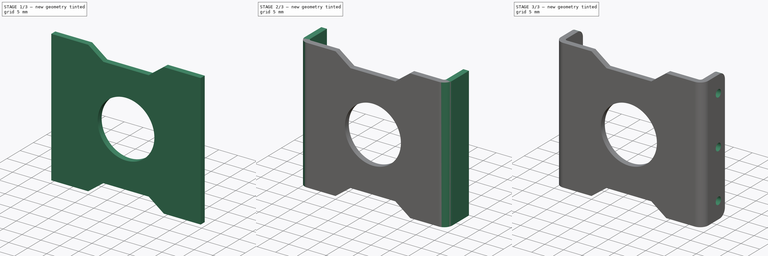
[diagram: build sequence overview — one tinted view per stage of 3, left to right]
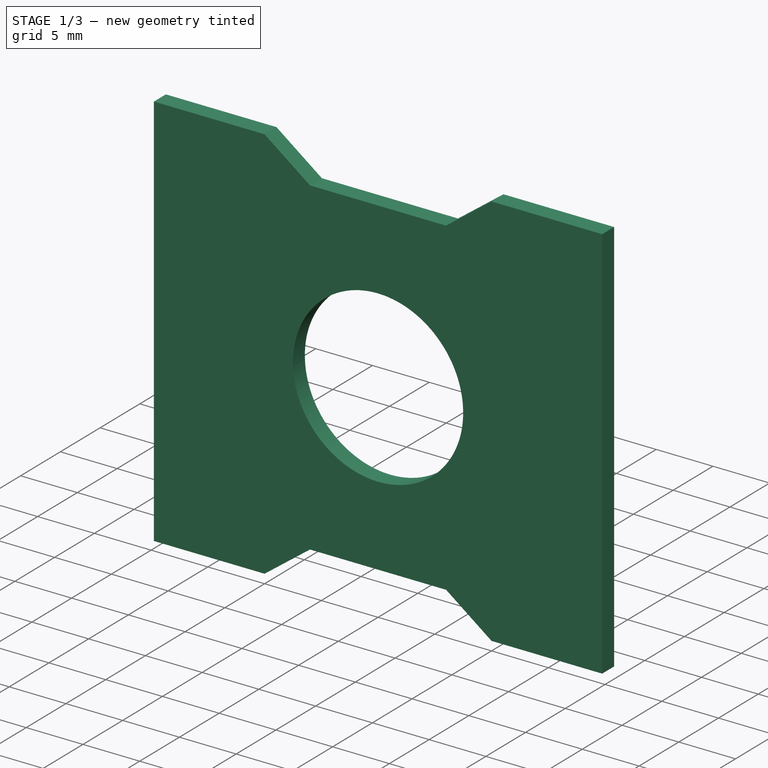
[diagram: stage 1 of 3 — iso view after this stage's code; geometry added in this stage tinted green]
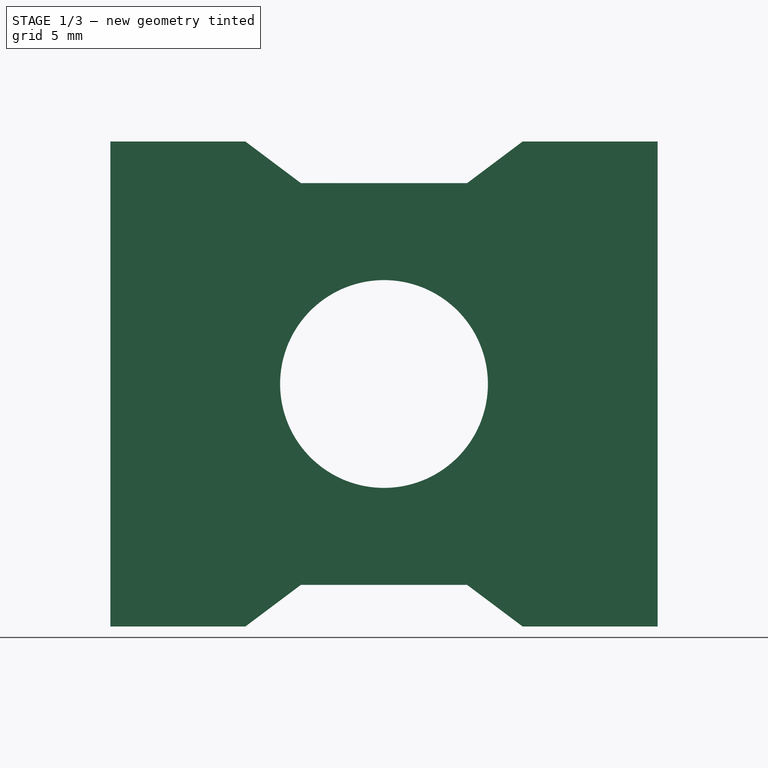
[diagram: stage 1 of 3 — front view after this stage's code; geometry added in this stage tinted green]
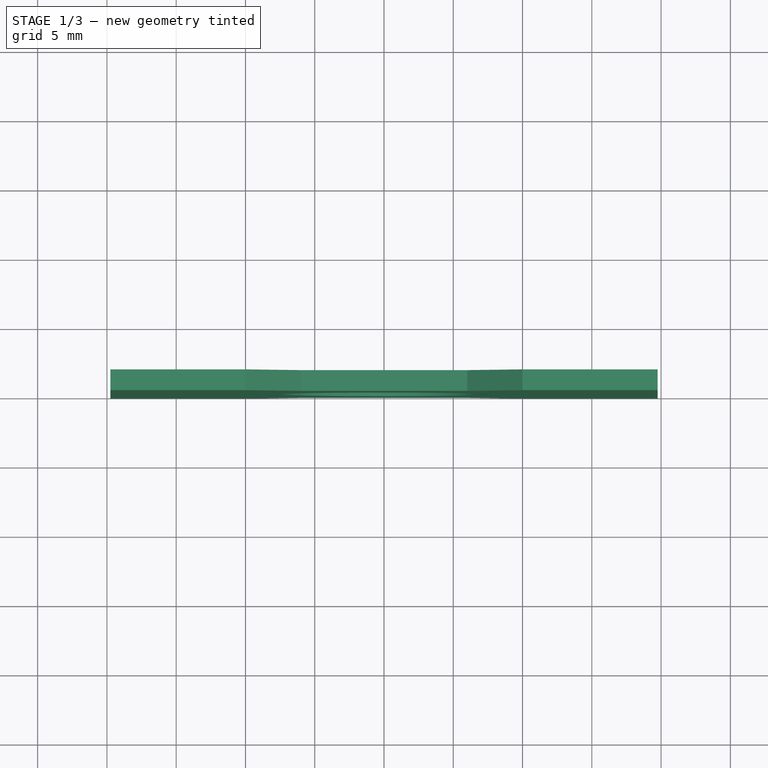
[diagram: stage 1 of 3 — top view after this stage's code; geometry added in this stage tinted green]
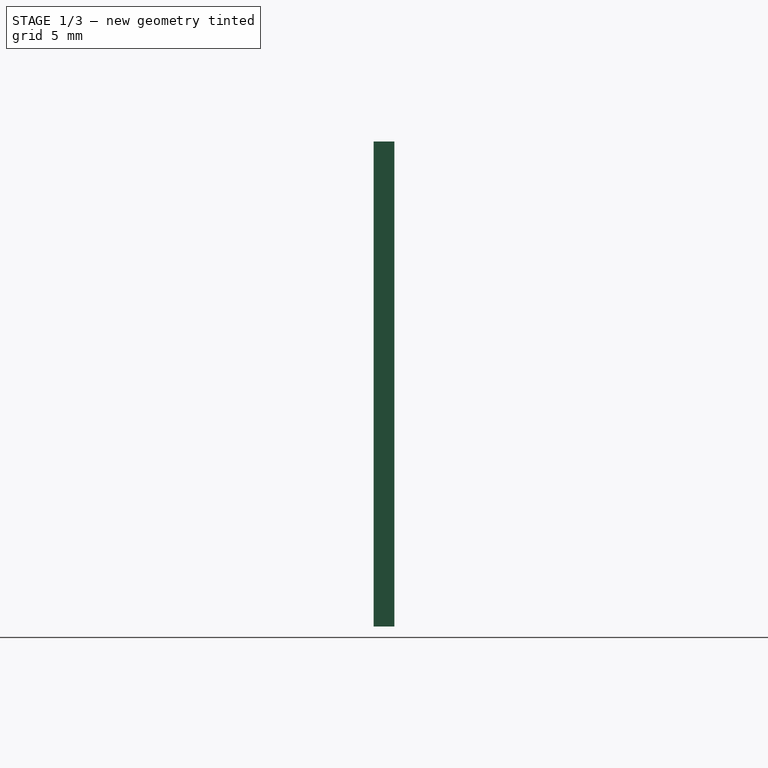
[diagram: stage 1 of 3 — right view after this stage's code; geometry added in this stage tinted green]
FCSTD DOCUMENT  (FreeCAD 0.21R33668 +26 (Git))
Label: MJ_leg_front
Comment: # 2023-12-26 22:17:25: read from None
License: All rights reserved
LicenseURL: https://en.wikipedia.org/wiki/All_rights_reserved
objects: Sketcher::SketchObject×3, PartDesign::Pocket×2, PartDesign::FeaturePython×2, Spreadsheet::Sheet×1, PartDesign::Pad×1, PartDesign::Fillet×1, PartDesign::Body×1
note: 14 computed .brp shape members not serialized (recipe doc carries the construction recipe); baked Part::Feature solids carry a one-line shape summary decoded from their .brp

FEATURE [Spreadsheet::Sheet] Parameters
  cells = A1='Parameter; B1='Value; C1='Fromula; D1='Tolerance; E1='Comment; A2='BendRadius; B2(BendRadius)=1.5; C2='1.5mm; A3='Thickness; B3(Thickness)=1.5; C3='1.5mm; A4='BendReliefDepth; B4(BendReliefDepth)=0.75; C4='0.75mm; A5='BendReliefWidth; B5(BendReliefWidth)=1.5; C5='1.5mm; A6='CornerReliefSize; B6(CornerReliefSize)=6; C6='6mm; A7='GapSize; B7(GapSize)=1.5; C7='1.5mm; A8='JacobiRadiusSize; B8(JacobiRadiusSize)=1.5; C8='1.5mm; A9='Kファクター; B9(K_____)=0.44; C9='0.44; A10='MinimumRemnant; B10(MinimumRemnant)=3; C10='3mm; A11='SeamGap; B11(SeamGap)=0.01; C11='0.01mm; A12='TransitionRadius; B12(TransitionRadius)=1.5; C12='1.5mm; A13='d0; B13(d0_)=39.5; C13='39.5mm; A14='d1; B14(d1_)=35; C14='35mm; A15='d10; B15(d10_)=0.75; C15='0.75mm; A16='d11; B16(d11_)=3; C16='3mm; A17='d12; B17(d12_)=1.5; C17='1.5mm; A18='d13; B18(d13_)=8.5; C18='8.5mm; A19='d14; B19(d14_)=90; C19='90°; A20='d15; B20(d15_)=0.68; C20='0.68mm; A21='d16; B21(d16_)=6; C21='6mm; A22='d17; B22(d17_)=1.5; C22='1.5mm; A23='d18; B23(d18_)=1.5; C23='1.5mm; A24='d19; B24(d19_)=2; C24='2mm; A25='d2; B25(d2_)=1.5; C25='1.5mm; A26='d20; B26(d20_)=2; C26='2mm; A27='d21; B27(d21_)=2; C27='2mm; A28='d22; B28(d22_)=13; C28='13mm; A29='d23; B29(d23_)=13; C29='13mm; A30='d24; B30(d24_)=2.5; C30='2.5mm; A31='d25; B31(d25_)=10; C31='10mm; A32='d26; B32(d26_)=0; C32='0°; A33='d27; B33(d27_)=2; C33='2mm; A34='d3; B34(d3_)=15; C34='15mm; A35='d4; B35(d4_)=3; C35='3mm; A36='d5; B36(d5_)=20; C36='20mm; A37='d6; B37(d6_)=12; C37='12mm; A38='d7; B38(d7_)=1.5; C38='1.5mm; A39='d8; B39(d8_)=0; C39='0°; A40='d9; B40(d9_)=1.5; C40='1.5mm
FEATURE [Sketcher::SketchObject] ____________1  label="スケッチ1"
  FullyConstrained = true
  Placement = pos=(0,0,0) rot=(0,0.707107,0.707107;3.14159rad)
  sketch-geometry (6):
    g0: LineSegment StartX=19.75 StartY=17.5 StartZ=0 EndX=-19.75 EndY=17.5 EndZ=0
    g1: LineSegment StartX=-19.75 StartY=17.5 StartZ=0 EndX=-19.75 EndY=-17.5 EndZ=0
    g2: LineSegment StartX=-19.75 StartY=-17.5 StartZ=0 EndX=19.75 EndY=-17.5 EndZ=0
    g3: LineSegment StartX=19.75 StartY=-17.5 StartZ=0 EndX=19.75 EndY=17.5 EndZ=0
    g4: LineSegment StartX=19.75 StartY=17.5 StartZ=0 EndX=-19.75 EndY=-17.5 EndZ=0
    g5: LineSegment StartX=-19.75 StartY=17.5 StartZ=0 EndX=19.75 EndY=-17.5 EndZ=0
  constraints (16):
    c: Perpendicular(g0,g1)
    c: Parallel(g0,g2)
    c: Parallel(g1,g3)
    c: Horizontal(g0)
    c: PointOnObject(g-1,g5)
    c: PointOnObject(g-1,g4)
    c: Coincident(g0,g3)
    c: Coincident(g0,g4)
    c: Coincident(g1,g2)
    c: Coincident(g1,g4)
    c: Coincident(g0,g1)
    c: Coincident(g0,g5)
    c: Coincident(g2,g3)
    c: Coincident(g2,g5)
    c: DistanceX(g0,g0) = 39.5
    c: DistanceY(g1,g1) = 35
FEATURE [PartDesign::Pad] Pad
  Direction = (0,1,-2e-16)
  Length = 1.5
  Length2 = 10
  Placement = pos=(0,0,0) rot=(0,0.707107,0.707107;3.14159rad)
  Profile = -> ____________1
  ReferenceAxis = -> ____________1 [N_Axis]
  Type = 0
FEATURE [Sketcher::SketchObject] ____________2  label="スケッチ2"
  ExternalGeometry = -> [Pad]
  FullyConstrained = true
  Placement = pos=(0,1.5,0) rot=(-1,0,0;1.5708rad)
  sketch-geometry (9):
    g0: Circle CenterX=0 CenterY=0 CenterZ=0 NormalX=0 NormalY=0 NormalZ=1 AngleXU=0 Radius=7.5
    g1: LineSegment StartX=-10 StartY=-17.5 StartZ=0 EndX=-6 EndY=-14.5 EndZ=0
    g2: LineSegment StartX=-6 StartY=-14.5 StartZ=0 EndX=6 EndY=-14.5 EndZ=0
    g3: LineSegment StartX=6 StartY=-14.5 StartZ=0 EndX=10 EndY=-17.5 EndZ=0
    g4: LineSegment StartX=10 StartY=-17.5 StartZ=0 EndX=-10 EndY=-17.5 EndZ=0
    g5: LineSegment StartX=10 StartY=17.5 StartZ=0 EndX=-10 EndY=17.5 EndZ=0
    g6: LineSegment StartX=-10 StartY=17.5 StartZ=0 EndX=-6 EndY=14.5 EndZ=0
    g7: LineSegment StartX=-6 StartY=14.5 StartZ=0 EndX=6 EndY=14.5 EndZ=0
    g8: LineSegment StartX=6 StartY=14.5 StartZ=0 EndX=10 EndY=17.5 EndZ=0
  constraints (22):
    c: Diameter(g0) = 15  'd3'
    c: Coincident(g1,g4)
    c: Coincident(g3,g4)
    c: Coincident(g0,g-1)
    c: Symmetric(g6,g7,g-2)
    c: Symmetric(g1,g2,g-2)
    c: DistanceX(g5,g5) = 20
    c: DistanceY(g6,g6) = 3
    c: DistanceX(g7,g7) = 12
    c: Equal(g7,g2)
    c: Equal(g4,g5)
    c: DistanceY(g1,g1) = 3
    c: Coincident(g5,g6)
    c: Coincident(g6,g7)
    c: Coincident(g5,g8)
    c: Coincident(g7,g8)
    c: Coincident(g1,g2)
    c: Coincident(g2,g3)
    c: Tangent(g5,g-3)
    c: Symmetric(g5,g5,g-2)
    c: Tangent(g4,g-5)
    c: Symmetric(g1,g3,g-2)
FEATURE [PartDesign::Pocket] Pocket
  BaseFeature = -> Pad
  Direction = (0,-1,-2e-16)
  Length = 5
  Length2 = 5
  Placement = pos=(0,0,0) rot=(0,0.707107,0.707107;3.14159rad)
  Profile = -> ____________2
  ReferenceAxis = -> ____________2 [N_Axis]
  Type = 1
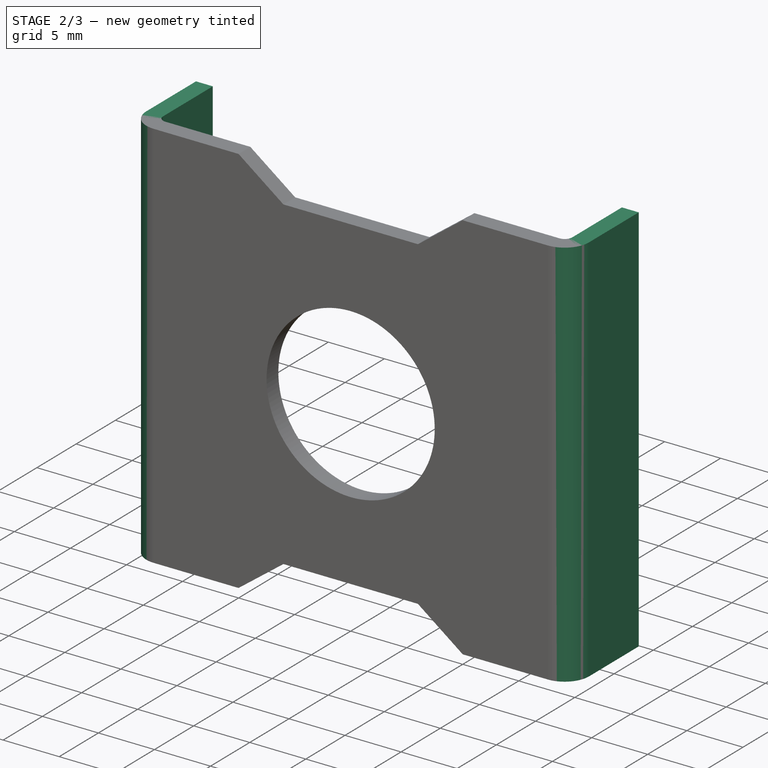
[diagram: stage 2 of 3 — iso view after this stage's code; geometry added in this stage tinted green]
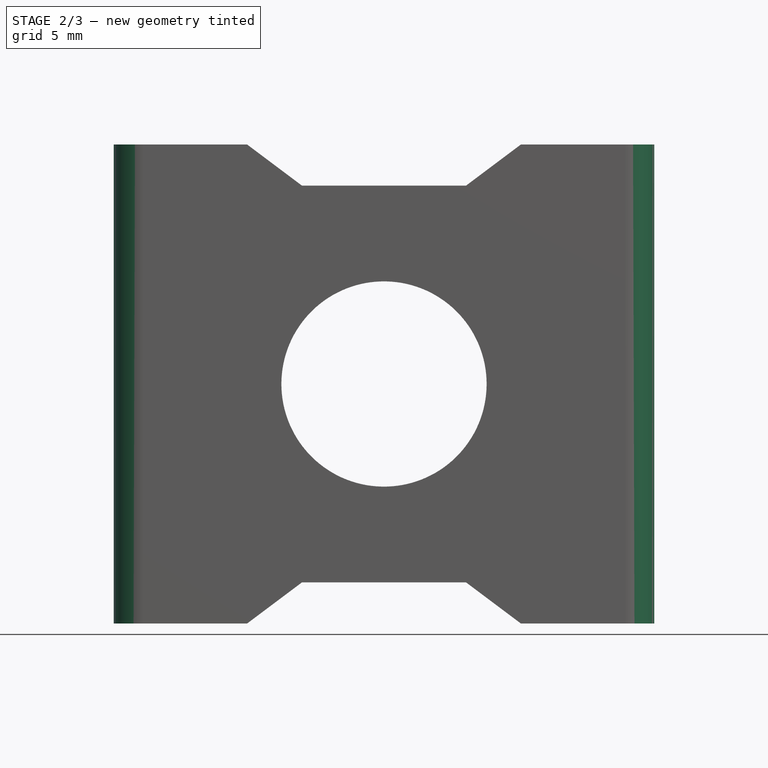
[diagram: stage 2 of 3 — front view after this stage's code; geometry added in this stage tinted green]
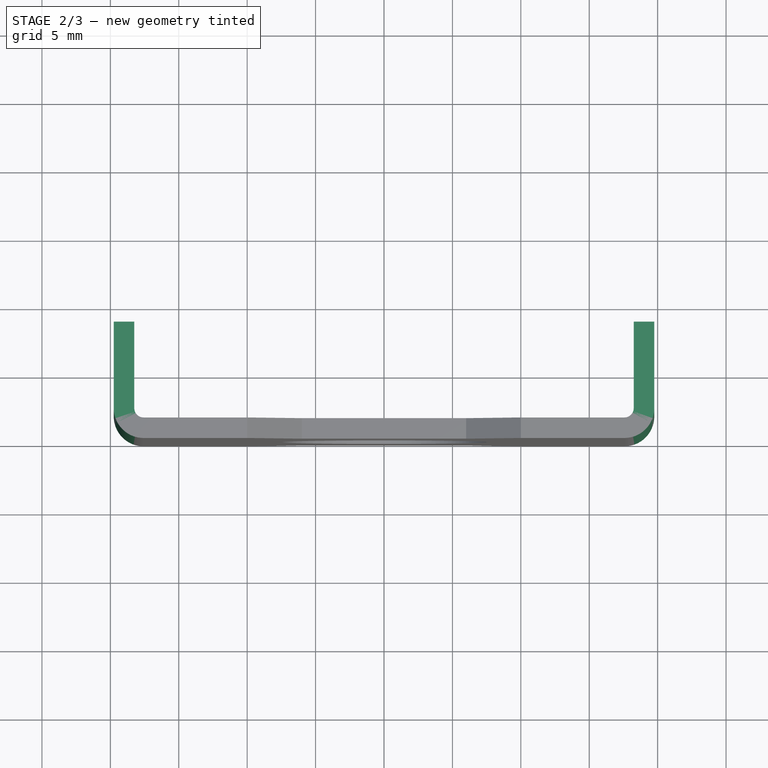
[diagram: stage 2 of 3 — top view after this stage's code; geometry added in this stage tinted green]
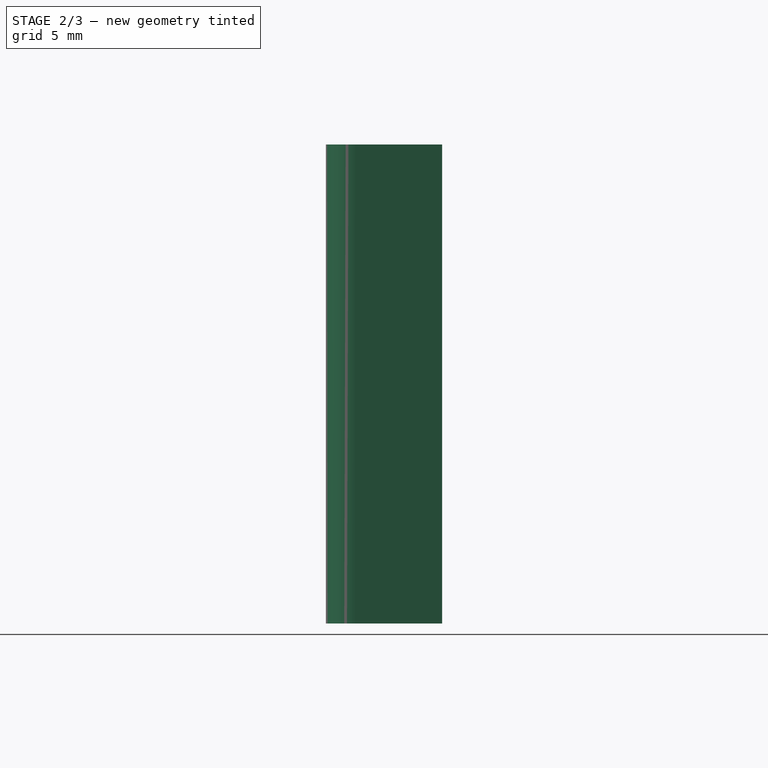
[diagram: stage 2 of 3 — right view after this stage's code; geometry added in this stage tinted green]
FEATURE [PartDesign::FeaturePython] Bend  # WARN: FeaturePython — macro-defined, semantics opaque (R4)
  AutoMiter = true
  BaseFeature = -> Pocket
  BendType = 1
  LengthList = [8.5]
  LengthSpec = 1
  ReliefFactor = 0.7
  UseReliefFactor = false
  angle = 90
  baseObject = -> Pocket [Face11]
  bendAList = [90]
  extend1 = 0
  extend2 = 0
  gap1 = 0
  gap2 = 0
  invert = false
  kfactor = 0.5
  length = 8.5
  maxExtendDist = 5
  minGap = 0.2
  minReliefGap = 1
  miterangle1 = 0
  miterangle2 = 0
  offset = 0
  radius = 0.68
  reliefType = 0
  reliefd = 1
  reliefw = 0.8
  sketchflip = false
  sketchinvert = false
  unfold = false
FEATURE [PartDesign::FeaturePython] Bend001  # WARN: FeaturePython — macro-defined, semantics opaque (R4)
  AutoMiter = true
  BaseFeature = -> Bend
  BendType = 1
  LengthList = [8.5]
  LengthSpec = 1
  ReliefFactor = 0.7
  UseReliefFactor = false
  angle = 90
  baseObject = -> Bend [Face22]
  bendAList = [90]
  extend1 = 0
  extend2 = 0
  gap1 = 0
  gap2 = 0
  invert = false
  kfactor = 0.5
  length = 8.5
  maxExtendDist = 5
  minGap = 0.2
  minReliefGap = 1
  miterangle1 = 0
  miterangle2 = 0
  offset = 0
  radius = 0.68
  reliefType = 0
  reliefd = 1
  reliefw = 0.8
  sketchflip = false
  sketchinvert = false
  unfold = false
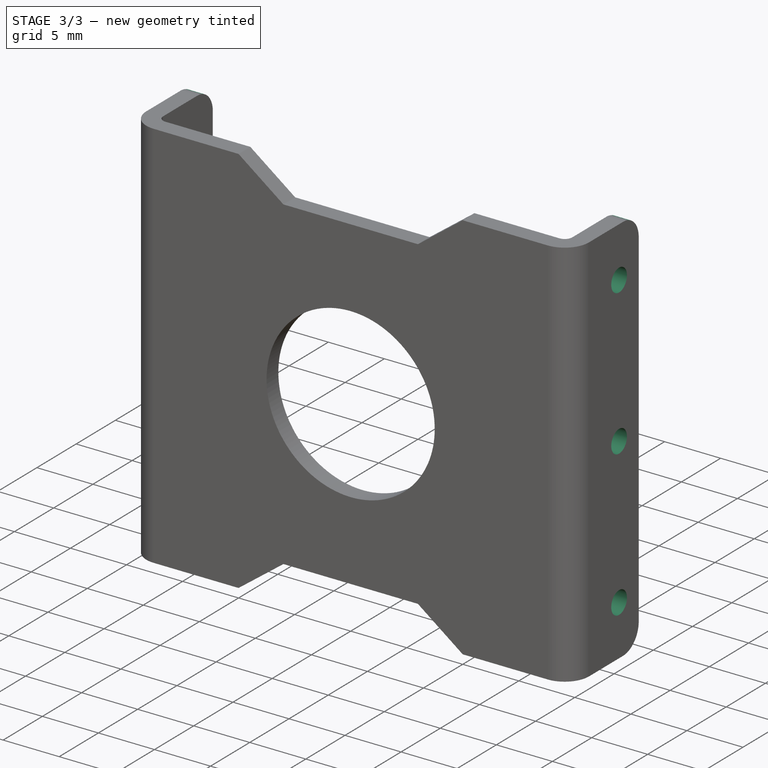
[diagram: stage 3 of 3 — iso view after this stage's code; geometry added in this stage tinted green]
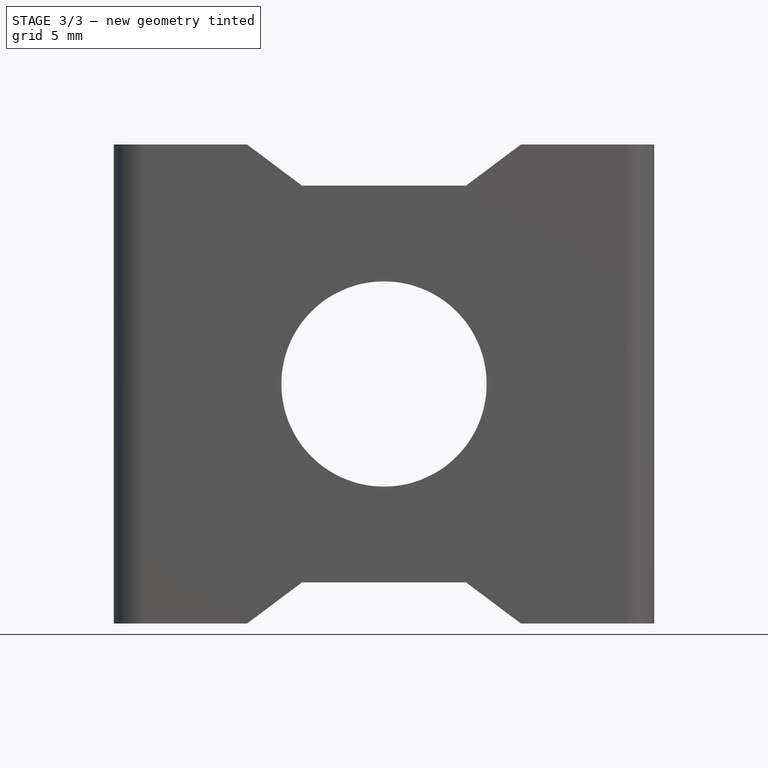
[diagram: stage 3 of 3 — front view after this stage's code; geometry added in this stage tinted green]
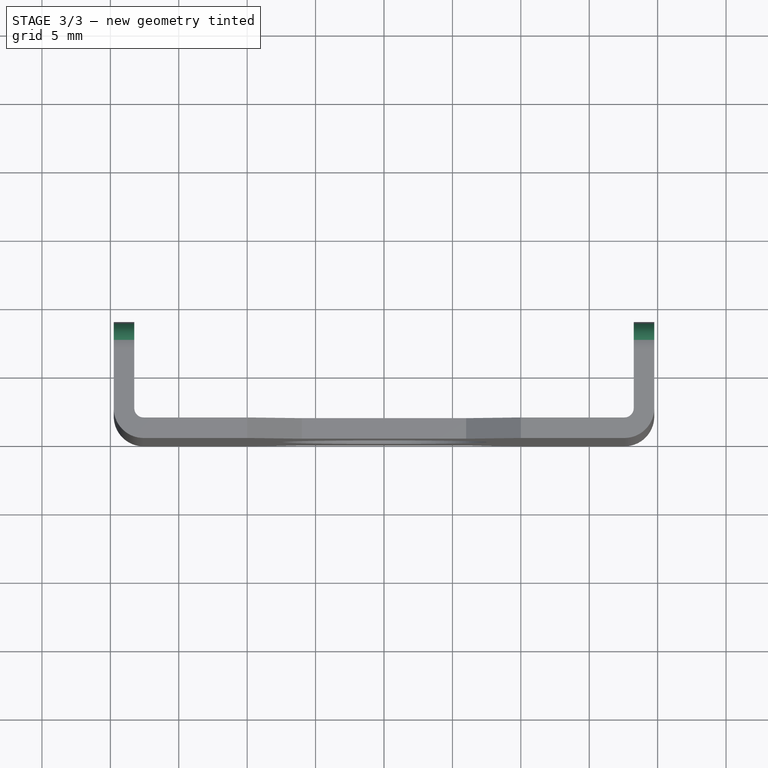
[diagram: stage 3 of 3 — top view after this stage's code; geometry added in this stage tinted green]
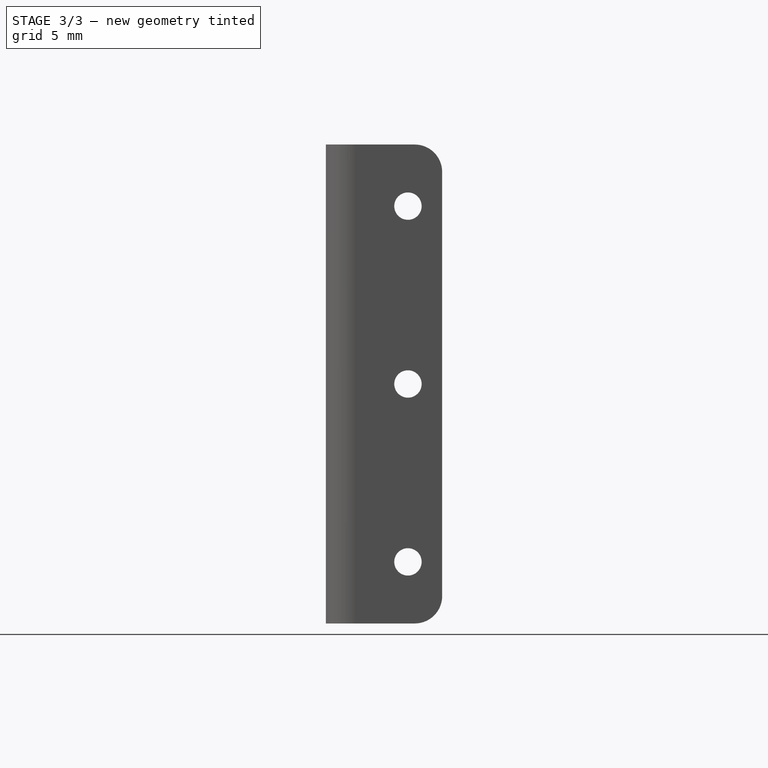
[diagram: stage 3 of 3 — right view after this stage's code; geometry added in this stage tinted green]
FEATURE [Sketcher::SketchObject] ____________4  label="スケッチ4"
  ExternalGeometry = -> [Bend001]
  FullyConstrained = true
  MapMode = 5
  Placement = pos=(19.75,3.4e-15,-1.54e-14) rot=(0.57735,0.57735,0.57735;2.0944rad)
  Support = -> [Bend001]
  sketch-geometry (5):
    g0: Circle CenterX=6 CenterY=-13 CenterZ=0 NormalX=0 NormalY=0 NormalZ=1 AngleXU=0 Radius=1
    g1: Circle CenterX=6 CenterY=0 CenterZ=0 NormalX=0 NormalY=0 NormalZ=1 AngleXU=0 Radius=1
    g2: Circle CenterX=6 CenterY=13 CenterZ=0 NormalX=0 NormalY=0 NormalZ=1 AngleXU=0 Radius=1
    g3: LineSegment StartX=6 StartY=-13 StartZ=0 EndX=6 EndY=0 EndZ=0
    g4: LineSegment StartX=6 StartY=0 StartZ=0 EndX=6 EndY=13 EndZ=0
  constraints (14):
    c: Diameter(g1) = 2  'd20'
    c: Equal(g0,g1)
    c: Equal(g1,g2)
    c: Coincident(g3,g0)
    c: Coincident(g3,g1)
    c: Coincident(g4,g1)
    c: Coincident(g4,g2)
    c: Equal(g4,g3)
    c: PointOnObject(g3,g-1)
    c: Vertical(g4)
    c: Vertical(g3)
    c: DistanceY(g4,g4) = 13
    c: DistanceX(g0,g-3) = 2.5
    c: DistanceX(g-1,g0) = 6
FEATURE [PartDesign::Pocket] Pocket001
  BaseFeature = -> Bend001
  Direction = (-1,-1e-16,8e-16)
  Length = 5
  Length2 = 5
  Profile = -> ____________4
  ReferenceAxis = -> ____________4 [N_Axis]
  Type = 1
FEATURE [PartDesign::Fillet] Fillet
  Base = -> Pocket001 [Edge2,Edge8,Edge86,Edge85]
  BaseFeature = -> Pocket001
  Radius = 2
  SupportTransform = false
  UseAllEdges = false
FEATURE [PartDesign::Body] Body
  Group = -> [____________1,____________2,____________4,Pad,Pocket,Bend,Bend001,Pocket001,Fillet]
  Origin = -> Origin
  Tip = -> Fillet
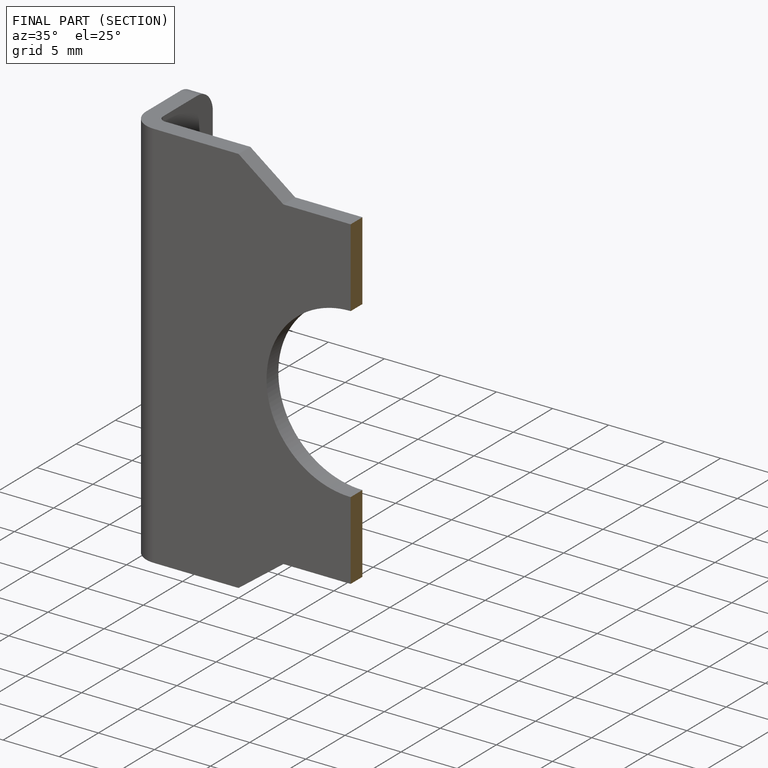
[diagram: finished part — half-section view (interior)]
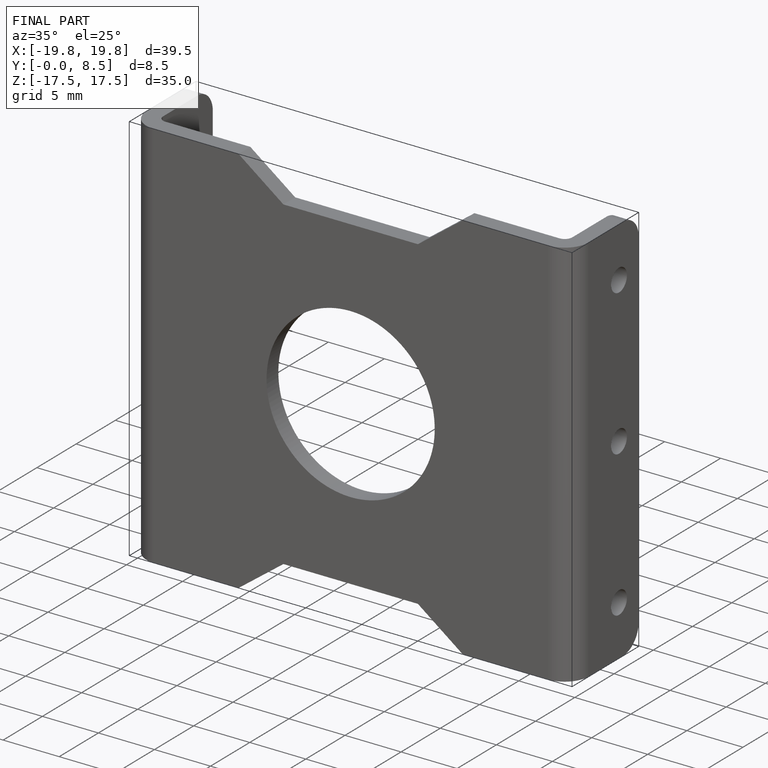
[diagram: finished part — iso view with bounding-box wireframe]
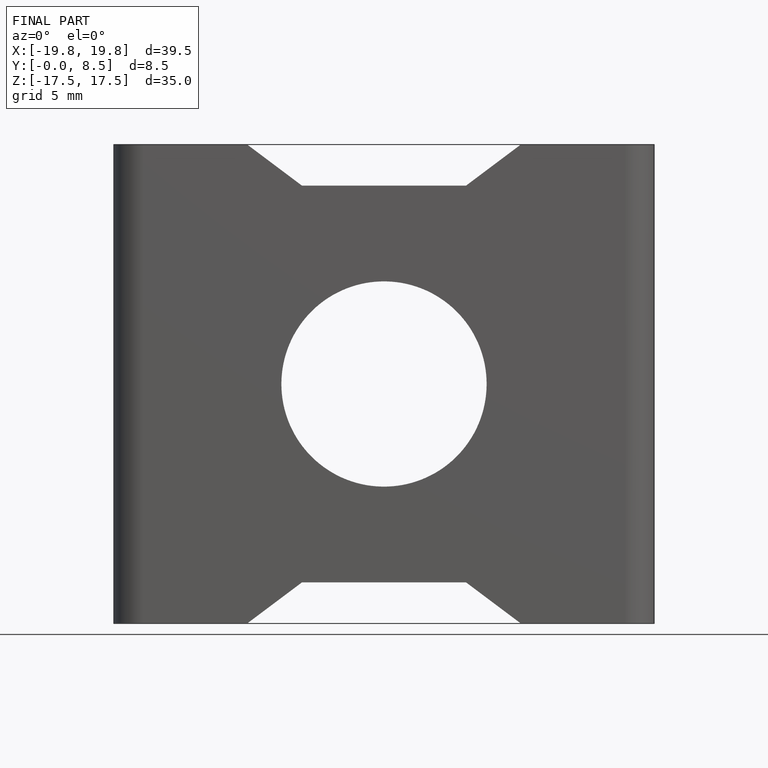
[diagram: finished part — front view with bounding-box wireframe]
